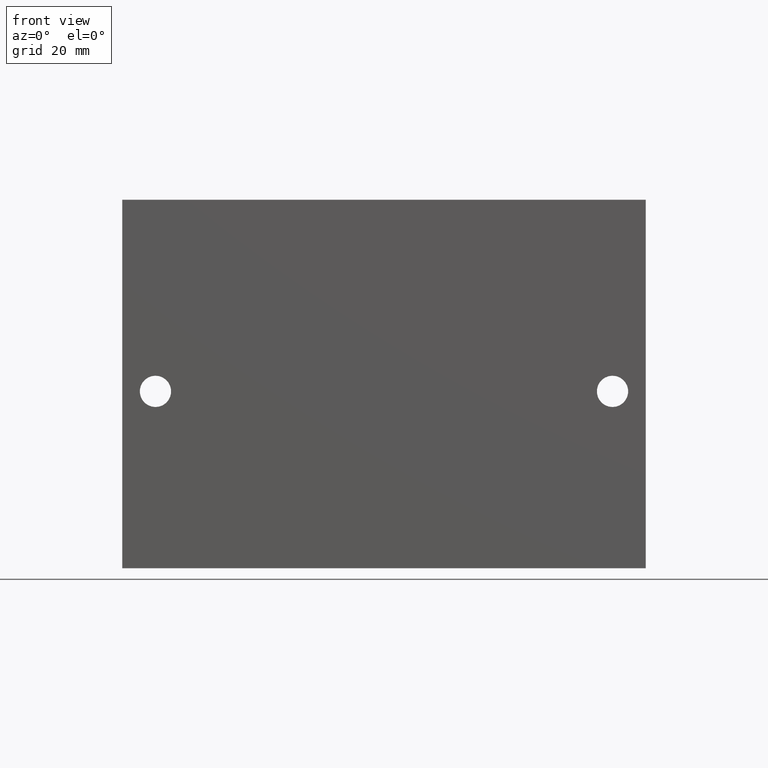
[diagram: clean part render]
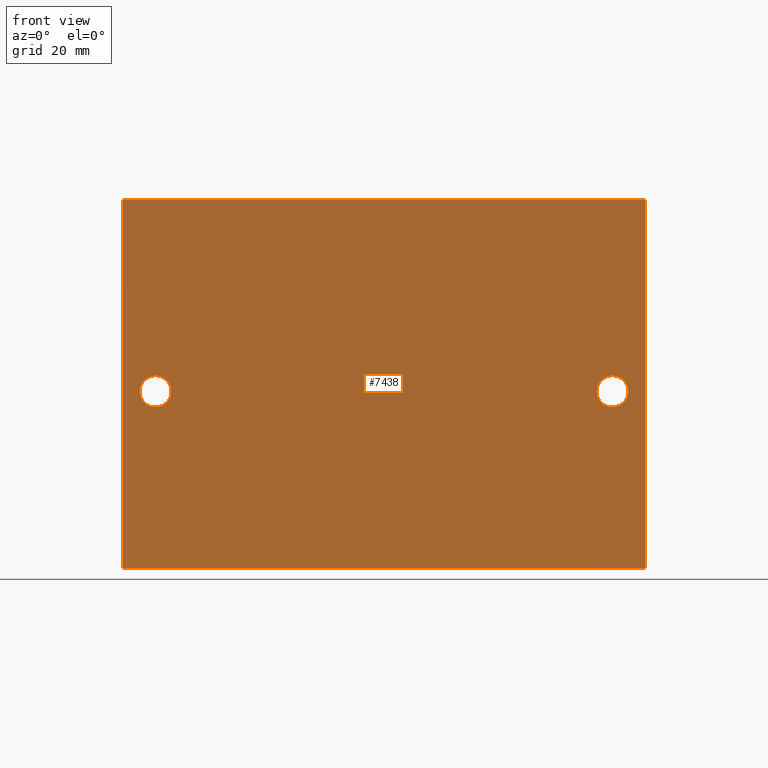
[diagram: same view with one face highlighted and labeled with its STEP entity id]
A machine part, front view. The second image highlights one B-rep face of the part: STEP entity #7438.
In plain terms, the highlighted planar face has unit normal (0, 1, 0).
Its self-contained STEP definition (entity closure, byte-faithful):
#201 = CIRCLE ( 'NONE', #4029, 0.1328125000000000000 ) ;
#206 = CIRCLE ( 'NONE', #4030, 0.1328125000000000000 ) ;
#1183 = VERTEX_POINT ( 'NONE', #8388 ) ;
#1189 = VERTEX_POINT ( 'NONE', #8381 ) ;
#1222 = VERTEX_POINT ( 'NONE', #8344 ) ;
#1499 = CIRCLE ( 'NONE', #4016, 0.1328125000000000000 ) ;
#1505 = LINE ( 'NONE', #5459, #1506 ) ;
#1506 = VECTOR ( 'NONE', #5456, 39.37007874015748100 ) ;
#1509 = LINE ( 'NONE', #4661, #1510 ) ;
#1510 = VECTOR ( 'NONE', #4660, 39.37007874015748100 ) ;
#1515 = LINE ( 'NONE', #4656, #1516 ) ;
#1516 = VECTOR ( 'NONE', #4655, 39.37007874015748100 ) ;
#1519 = LINE ( 'NONE', #4369, #1521 ) ;
#1520 = CIRCLE ( 'NONE', #4014, 0.1328125000000000000 ) ;
#1521 = VECTOR ( 'NONE', #4368, 39.37007874015748100 ) ;
#3155 = EDGE_CURVE ( 'NONE', #8378, #1189, #1499, .T. ) ;
#3161 = EDGE_CURVE ( 'NONE', #8584, #1222, #1505, .T. ) ;
#3173 = EDGE_CURVE ( 'NONE', #1222, #8524, #1509, .T. ) ;
#3175 = EDGE_CURVE ( 'NONE', #8584, #8530, #1515, .T. ) ;
#3177 = EDGE_CURVE ( 'NONE', #8586, #1183, #1520, .T. ) ;
#3186 = EDGE_CURVE ( 'NONE', #8530, #8524, #1519, .T. ) ;
#3885 = CARTESIAN_POINT ( 'NONE',  ( -1.937500000000000000, -1.500000000000000200, 1.632812500000000000 ) ) ;
#3899 = CARTESIAN_POINT ( 'NONE',  ( 2.218749999999999600, -1.500000000000000200, 0.0000000000000000000 ) ) ;
#3918 = CARTESIAN_POINT ( 'NONE',  ( 2.218749999999999600, -1.500000000000000200, 3.125000000000000000 ) ) ;
#3972 = CARTESIAN_POINT ( 'NONE',  ( -2.218750000000000000, -1.500000000000000200, 3.125000000000000000 ) ) ;
#3974 = CARTESIAN_POINT ( 'NONE',  ( 1.937500000000000000, -1.500000000000000200, 1.632812500000000000 ) ) ;
#4014 = AXIS2_PLACEMENT_3D ( 'NONE', #4632, #4630, #4629 ) ;
#4016 = AXIS2_PLACEMENT_3D ( 'NONE', #5494, #5493, #5492 ) ;
#4029 = AXIS2_PLACEMENT_3D ( 'NONE', #7139, #7099, #7098 ) ;
#4030 = AXIS2_PLACEMENT_3D ( 'NONE', #7077, #7072, #7071 ) ;
#4052 = AXIS2_PLACEMENT_3D ( 'NONE', #6244, #6237, #6235 ) ;
#4368 = DIRECTION ( 'NONE',  ( -0.0000000000000000000, -0.0000000000000000000, -1.000000000000000000 ) ) ;
#4369 = CARTESIAN_POINT ( 'NONE',  ( 2.218749999999999600, -1.500000000000000200, 3.125000000000000000 ) ) ;
#4578 = ORIENTED_EDGE ( 'NONE', *, *, #3161, .T. ) ;
#4579 = ORIENTED_EDGE ( 'NONE', *, *, #3175, .F. ) ;
#4581 = ORIENTED_EDGE ( 'NONE', *, *, #3186, .F. ) ;
#4582 = ORIENTED_EDGE ( 'NONE', *, *, #3173, .T. ) ;
#4629 = DIRECTION ( 'NONE',  ( 0.0000000000000000000, 0.0000000000000000000, 1.000000000000000000 ) ) ;
#4630 = DIRECTION ( 'NONE',  ( 0.0000000000000000000, 1.000000000000000000, 0.0000000000000000000 ) ) ;
#4632 = CARTESIAN_POINT ( 'NONE',  ( 1.937500000000000000, -1.500000000000000200, 1.500000000000000200 ) ) ;
#4655 = DIRECTION ( 'NONE',  ( 1.000000000000000000, 0.0000000000000000000, 0.0000000000000000000 ) ) ;
#4656 = CARTESIAN_POINT ( 'NONE',  ( -2.218750000000000000, -1.500000000000000200, 3.125000000000000000 ) ) ;
#4660 = DIRECTION ( 'NONE',  ( 1.000000000000000000, 0.0000000000000000000, 0.0000000000000000000 ) ) ;
#4661 = CARTESIAN_POINT ( 'NONE',  ( -2.218750000000000000, -1.500000000000000200, 0.0000000000000000000 ) ) ;
#5418 = EDGE_LOOP ( 'NONE', ( #5616, #5615 ) ) ;
#5456 = DIRECTION ( 'NONE',  ( -0.0000000000000000000, -0.0000000000000000000, -1.000000000000000000 ) ) ;
#5459 = CARTESIAN_POINT ( 'NONE',  ( -2.218750000000000000, -1.500000000000000200, 3.125000000000000000 ) ) ;
#5492 = DIRECTION ( 'NONE',  ( 0.0000000000000000000, 0.0000000000000000000, 1.000000000000000000 ) ) ;
#5493 = DIRECTION ( 'NONE',  ( 0.0000000000000000000, 1.000000000000000000, 0.0000000000000000000 ) ) ;
#5494 = CARTESIAN_POINT ( 'NONE',  ( -1.937500000000000000, -1.500000000000000200, 1.500000000000000200 ) ) ;
#5615 = ORIENTED_EDGE ( 'NONE', *, *, #6923, .T. ) ;
#5616 = ORIENTED_EDGE ( 'NONE', *, *, #3155, .T. ) ;
#5617 = ORIENTED_EDGE ( 'NONE', *, *, #6919, .T. ) ;
#5618 = ORIENTED_EDGE ( 'NONE', *, *, #3177, .T. ) ;
#6235 = DIRECTION ( 'NONE',  ( 0.0000000000000000000, -0.0000000000000000000, 1.000000000000000000 ) ) ;
#6237 = DIRECTION ( 'NONE',  ( 0.0000000000000000000, 1.000000000000000000, 0.0000000000000000000 ) ) ;
#6241 = PLANE ( 'NONE',  #4052 ) ;
#6244 = CARTESIAN_POINT ( 'NONE',  ( -2.218750000000000000, -1.500000000000000200, 3.125000000000000000 ) ) ;
#6548 = EDGE_LOOP ( 'NONE', ( #5618, #5617 ) ) ;
#6641 = EDGE_LOOP ( 'NONE', ( #4582, #4581, #4579, #4578 ) ) ;
#6919 = EDGE_CURVE ( 'NONE', #1183, #8586, #201, .T. ) ;
#6923 = EDGE_CURVE ( 'NONE', #1189, #8378, #206, .T. ) ;
#7071 = DIRECTION ( 'NONE',  ( 0.0000000000000000000, 0.0000000000000000000, 1.000000000000000000 ) ) ;
#7072 = DIRECTION ( 'NONE',  ( 0.0000000000000000000, 1.000000000000000000, 0.0000000000000000000 ) ) ;
#7077 = CARTESIAN_POINT ( 'NONE',  ( -1.937500000000000000, -1.500000000000000200, 1.500000000000000200 ) ) ;
#7098 = DIRECTION ( 'NONE',  ( 0.0000000000000000000, 0.0000000000000000000, 1.000000000000000000 ) ) ;
#7099 = DIRECTION ( 'NONE',  ( 0.0000000000000000000, 1.000000000000000000, 0.0000000000000000000 ) ) ;
#7139 = CARTESIAN_POINT ( 'NONE',  ( 1.937500000000000000, -1.500000000000000200, 1.500000000000000200 ) ) ;
#7438 = ADVANCED_FACE ( 'NONE', ( #7553, #7557, #7559 ), #6241, .F. ) ;
#7553 = FACE_BOUND ( 'NONE', #6548, .T. ) ;
#7557 = FACE_BOUND ( 'NONE', #5418, .T. ) ;
#7559 = FACE_OUTER_BOUND ( 'NONE', #6641, .T. ) ;
#8344 = CARTESIAN_POINT ( 'NONE',  ( -2.218750000000000000, -1.500000000000000200, 0.0000000000000000000 ) ) ;
#8378 = VERTEX_POINT ( 'NONE', #3885 ) ;
#8381 = CARTESIAN_POINT ( 'NONE',  ( -1.937500000000000000, -1.500000000000000200, 1.367187500000000200 ) ) ;
#8388 = CARTESIAN_POINT ( 'NONE',  ( 1.937500000000000000, -1.500000000000000200, 1.367187500000000200 ) ) ;
#8524 = VERTEX_POINT ( 'NONE', #3899 ) ;
#8530 = VERTEX_POINT ( 'NONE', #3918 ) ;
#8584 = VERTEX_POINT ( 'NONE', #3972 ) ;
#8586 = VERTEX_POINT ( 'NONE', #3974 ) ;